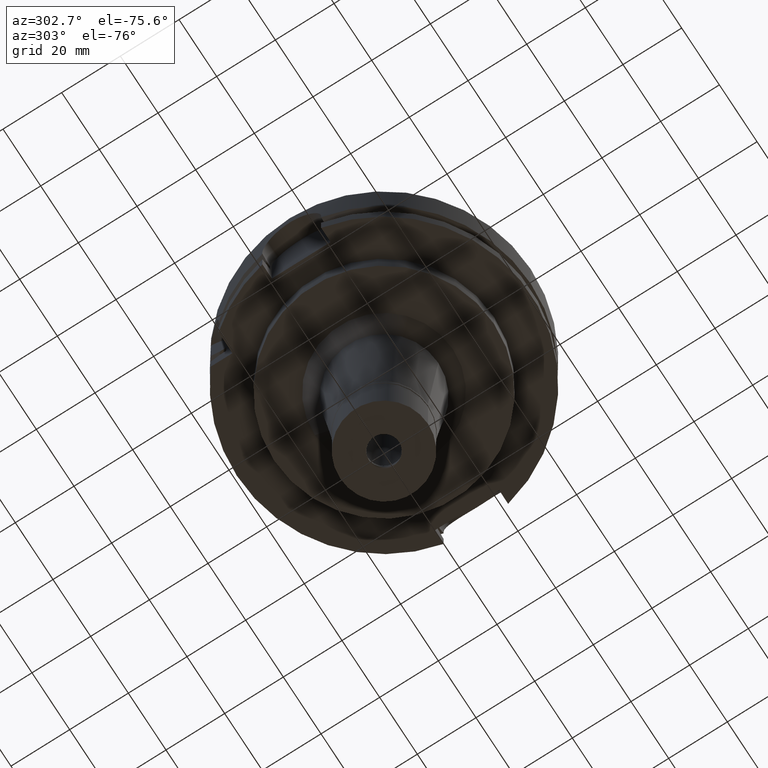
[diagram: clean part render]
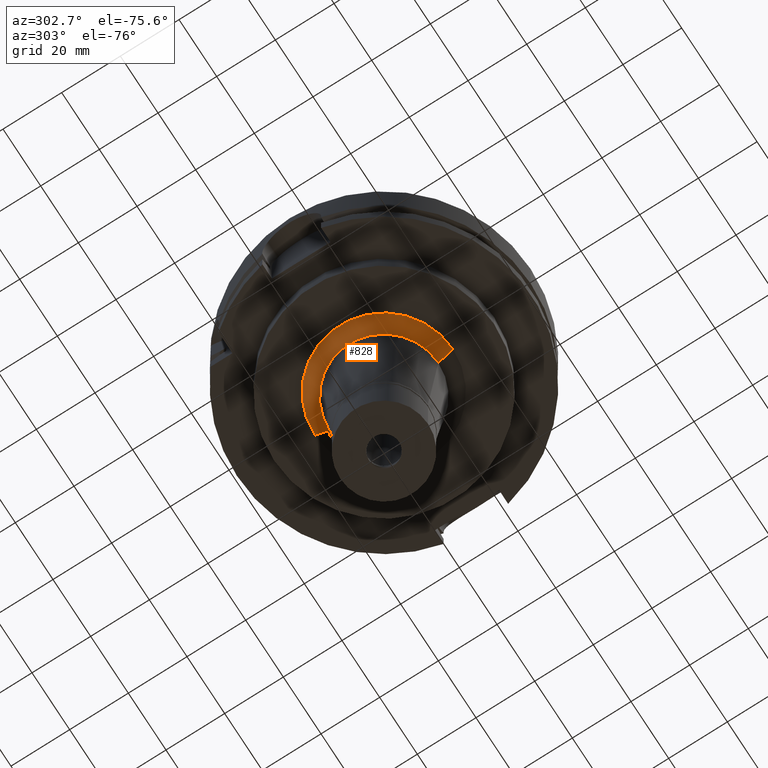
[diagram: same view with one face highlighted and labeled with its STEP entity id]
A machine part, auxiliary view. The second image highlights one B-rep face of the part: STEP entity #828.
In plain terms, the highlighted conical surface has half-angle 45 deg.
Its self-contained STEP definition (entity closure, byte-faithful):
#117 = VERTEX_POINT ( 'NONE', #5190 ) ;
#224 = DIRECTION ( 'NONE',  ( 0.0000000000000000000, -1.000000000000000000, 0.0000000000000000000 ) ) ;
#602 = LINE ( 'NONE', #1877, #4215 ) ;
#828 = ADVANCED_FACE ( 'NONE', ( #1961 ), #1248, .T. ) ;
#951 = EDGE_CURVE ( 'NONE', #4491, #1268, #3412, .T. ) ;
#1221 = LINE ( 'NONE', #2013, #4583 ) ;
#1248 = CONICAL_SURFACE ( 'NONE', #4928, 21.01704427374000161, 0.7853981633972997312 ) ;
#1268 = VERTEX_POINT ( 'NONE', #1988 ) ;
#1470 = CARTESIAN_POINT ( 'NONE',  ( 0.0000000000000000000, 0.0000000000000000000, -42.00000000000000000 ) ) ;
#1631 = ORIENTED_EDGE ( 'NONE', *, *, #5020, .F. ) ;
#1646 = CARTESIAN_POINT ( 'NONE',  ( 0.0000000000000000000, 0.0000000000000000000, -39.50000000000000000 ) ) ;
#1668 = DIRECTION ( 'NONE',  ( 0.0000000000000000000, -0.7071067811864980568, -0.7071067811865969777 ) ) ;
#1688 = AXIS2_PLACEMENT_3D ( 'NONE', #3267, #1935, #3656 ) ;
#1871 = ORIENTED_EDGE ( 'NONE', *, *, #4247, .T. ) ;
#1877 = CARTESIAN_POINT ( 'NONE',  ( 0.0000000000000000000, -23.51704427374000161, -37.00000000000000000 ) ) ;
#1935 = DIRECTION ( 'NONE',  ( 0.0000000000000000000, 0.0000000000000000000, -1.000000000000000000 ) ) ;
#1961 = FACE_OUTER_BOUND ( 'NONE', #2471, .T. ) ;
#1988 = CARTESIAN_POINT ( 'NONE',  ( 0.0000000000000000000, 18.51704427374000161, -42.00000000000000000 ) ) ;
#2013 = CARTESIAN_POINT ( 'NONE',  ( 0.0000000000000000000, 23.51704427374000161, -37.00000000000000000 ) ) ;
#2045 = DIRECTION ( 'NONE',  ( 0.0000000000000000000, 0.0000000000000000000, 1.000000000000000000 ) ) ;
#2471 = EDGE_LOOP ( 'NONE', ( #4065, #1631, #1871, #3954 ) ) ;
#2596 = CIRCLE ( 'NONE', #1688, 23.51704427374000161 ) ;
#3267 = CARTESIAN_POINT ( 'NONE',  ( 0.0000000000000000000, 0.0000000000000000000, -37.00000000000000000 ) ) ;
#3412 = CIRCLE ( 'NONE', #5571, 18.51704427374000161 ) ;
#3600 = DIRECTION ( 'NONE',  ( 0.0000000000000000000, 0.0000000000000000000, -1.000000000000000000 ) ) ;
#3656 = DIRECTION ( 'NONE',  ( 0.0000000000000000000, -1.000000000000000000, 0.0000000000000000000 ) ) ;
#3954 = ORIENTED_EDGE ( 'NONE', *, *, #5486, .T. ) ;
#3992 = VERTEX_POINT ( 'NONE', #5532 ) ;
#4065 = ORIENTED_EDGE ( 'NONE', *, *, #951, .F. ) ;
#4186 = DIRECTION ( 'NONE',  ( 0.0000000000000000000, 1.000000000000000000, 0.0000000000000000000 ) ) ;
#4215 = VECTOR ( 'NONE', #4947, 1000.000000000000000 ) ;
#4247 = EDGE_CURVE ( 'NONE', #3992, #117, #2596, .T. ) ;
#4491 = VERTEX_POINT ( 'NONE', #4802 ) ;
#4583 = VECTOR ( 'NONE', #1668, 1000.000000000000000 ) ;
#4802 = CARTESIAN_POINT ( 'NONE',  ( 0.0000000000000000000, -18.51704427374000161, -42.00000000000000000 ) ) ;
#4928 = AXIS2_PLACEMENT_3D ( 'NONE', #1646, #2045, #4186 ) ;
#4947 = DIRECTION ( 'NONE',  ( 0.0000000000000000000, 0.7071067811864980568, -0.7071067811865969777 ) ) ;
#5020 = EDGE_CURVE ( 'NONE', #3992, #4491, #602, .T. ) ;
#5190 = CARTESIAN_POINT ( 'NONE',  ( 0.0000000000000000000, 23.51704427374000161, -37.00000000000000000 ) ) ;
#5486 = EDGE_CURVE ( 'NONE', #117, #1268, #1221, .T. ) ;
#5532 = CARTESIAN_POINT ( 'NONE',  ( 0.0000000000000000000, -23.51704427374000161, -37.00000000000000000 ) ) ;
#5571 = AXIS2_PLACEMENT_3D ( 'NONE', #1470, #3600, #224 ) ;